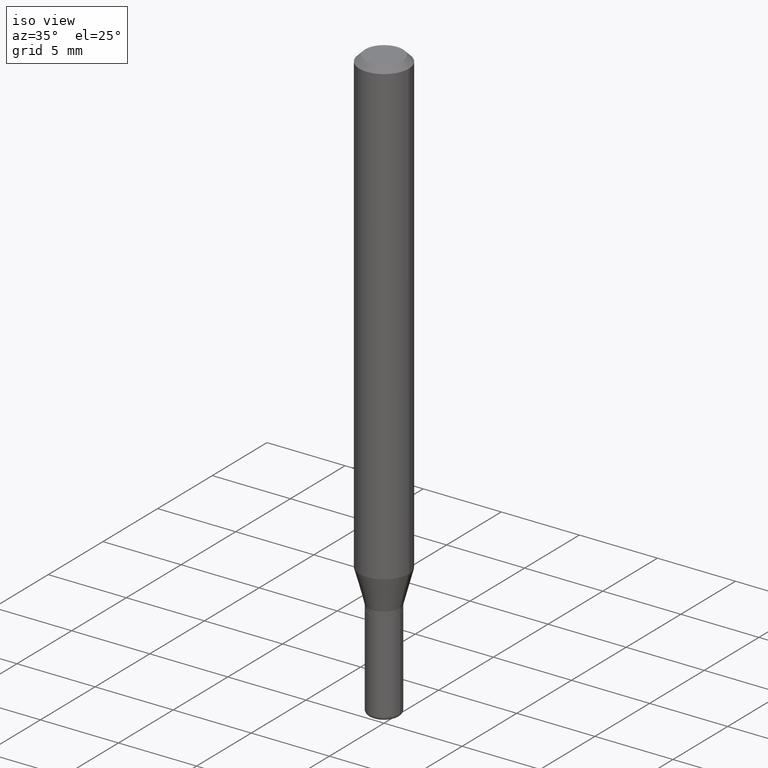
[diagram: clean part render]
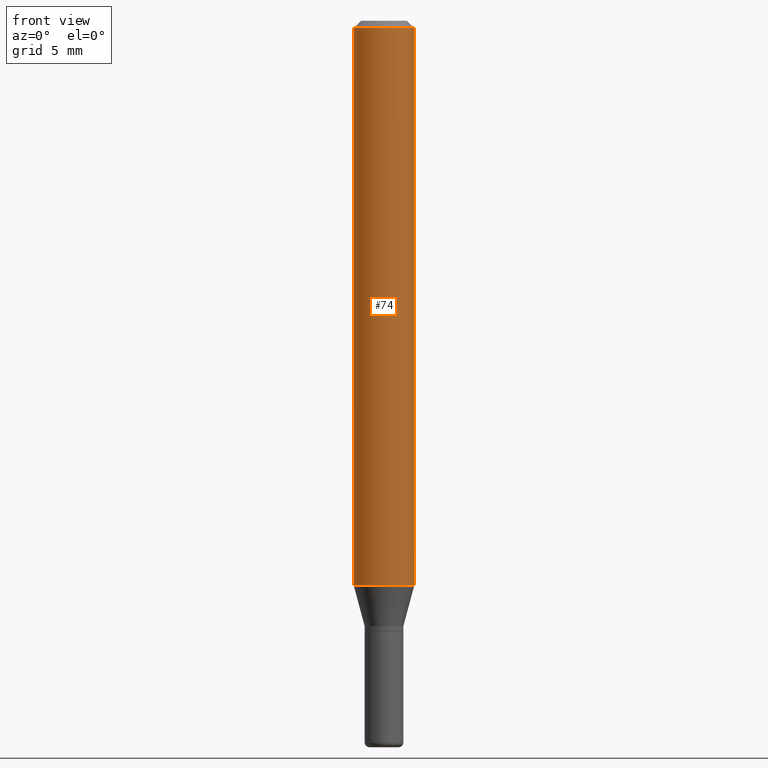
[diagram: tour spotlight — one face highlighted and labeled with its STEP entity id]
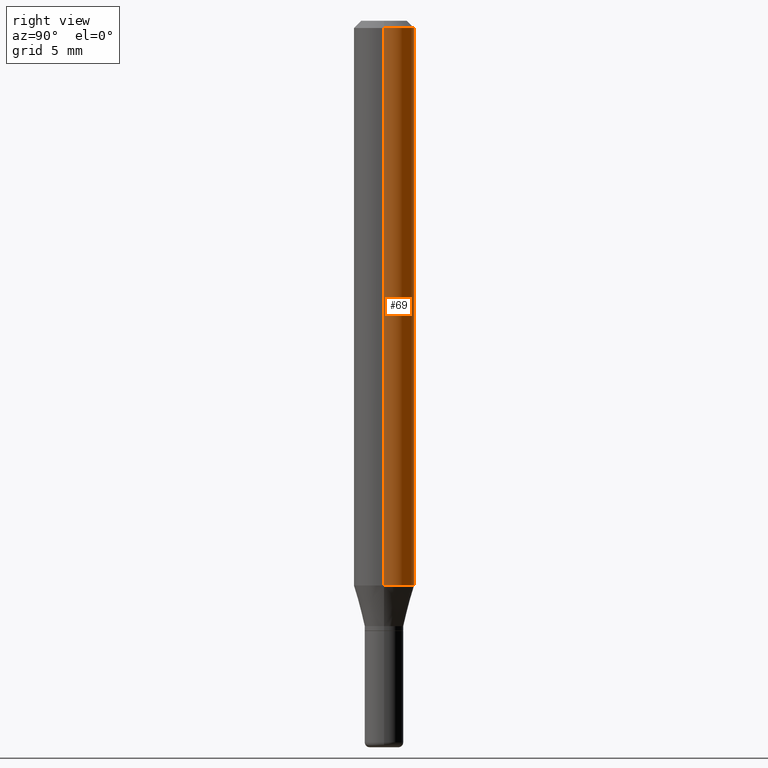
[diagram: tour spotlight — one face highlighted and labeled with its STEP entity id]
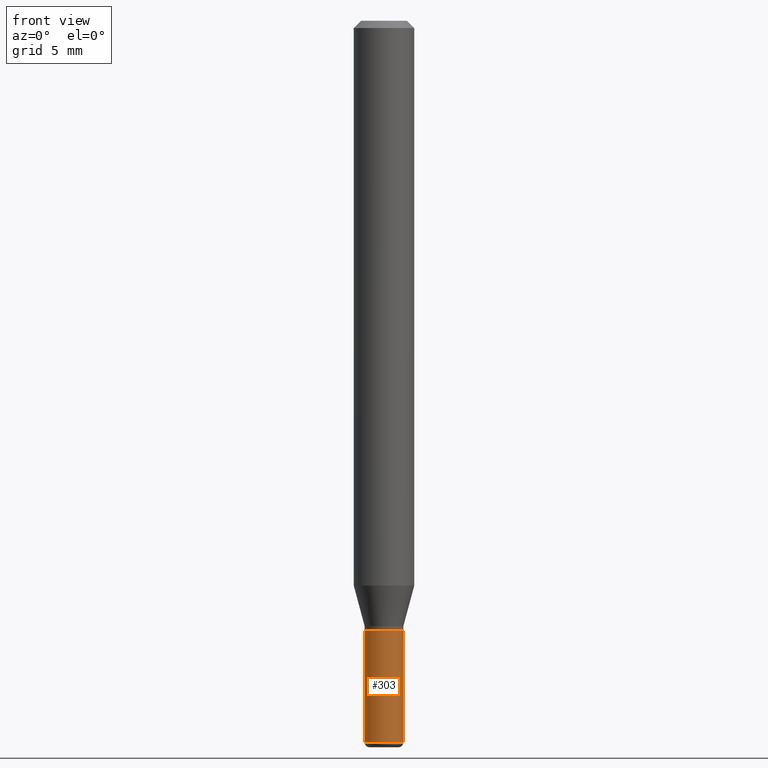
[diagram: tour spotlight — one face highlighted and labeled with its STEP entity id]
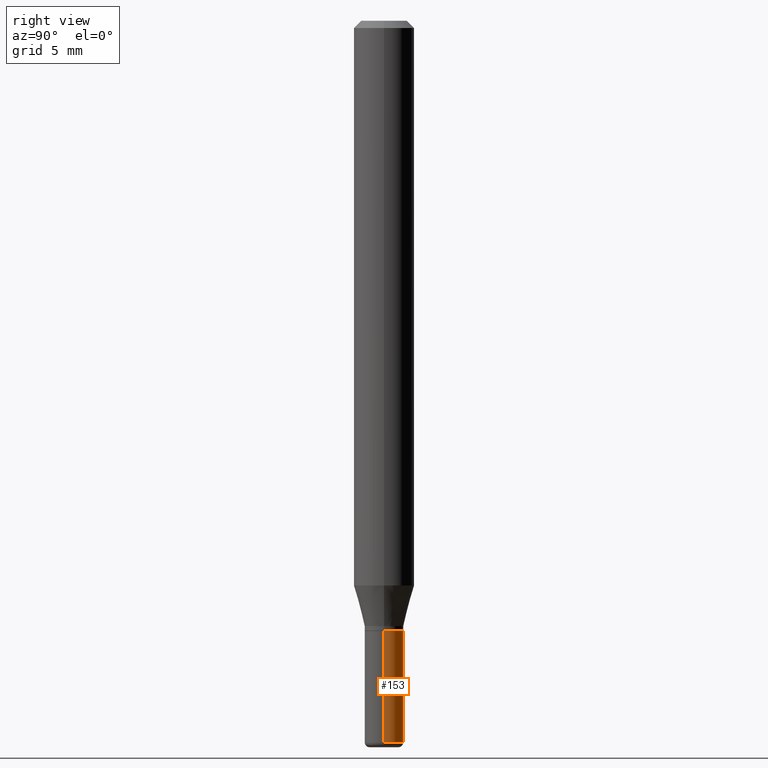
[diagram: tour spotlight — one face highlighted and labeled with its STEP entity id]
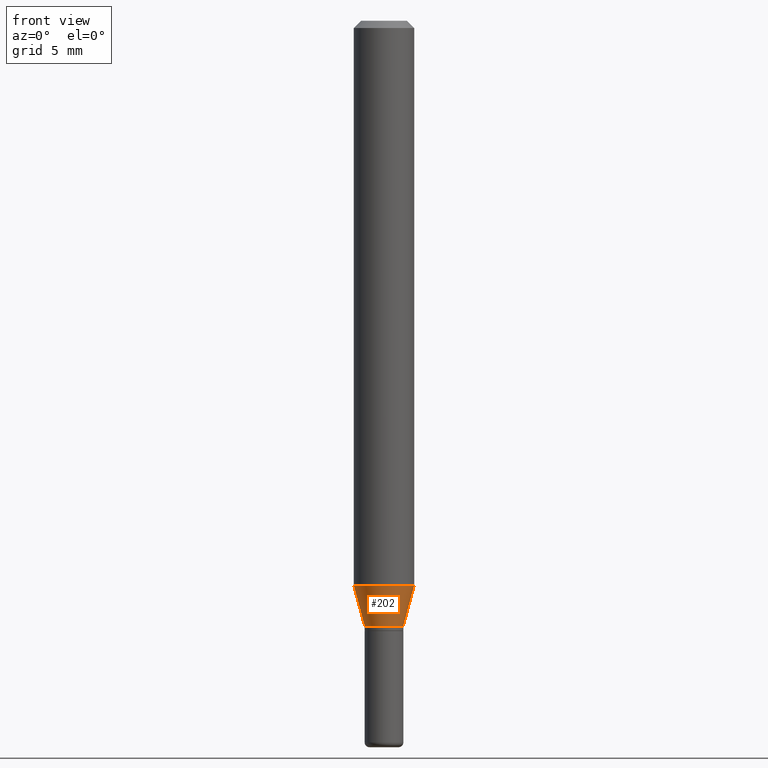
[diagram: tour spotlight — one face highlighted and labeled with its STEP entity id]
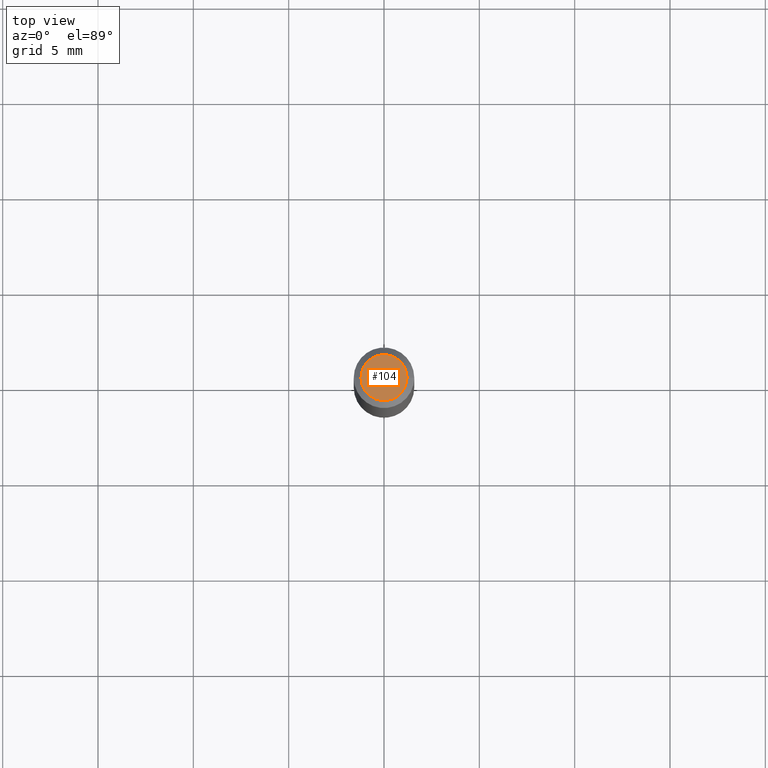
[diagram: tour spotlight — one face highlighted and labeled with its STEP entity id]
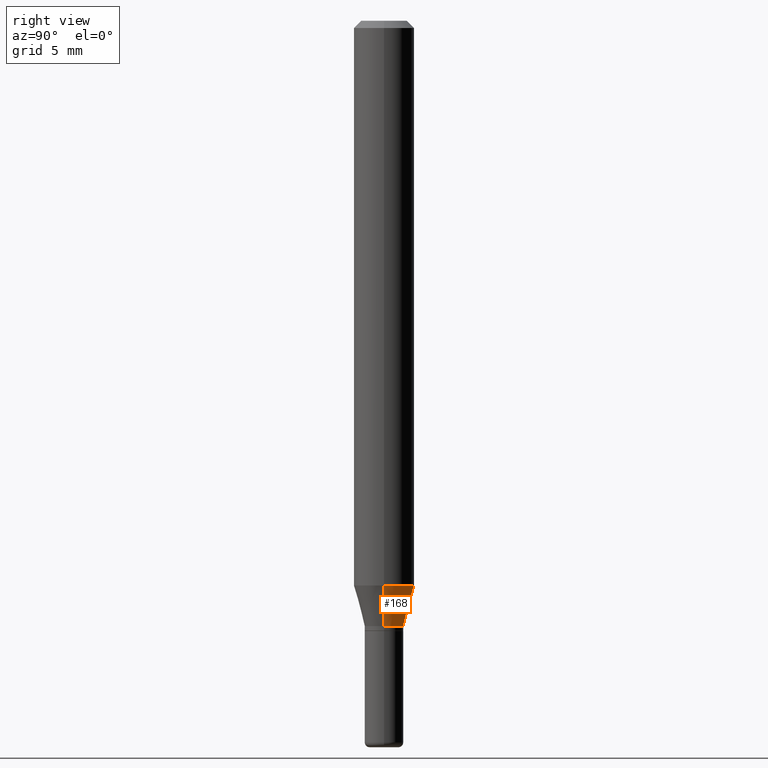
[diagram: tour spotlight — one face highlighted and labeled with its STEP entity id]
A machine part: a face-by-face anatomy tour. The part has 18 B-rep faces; the first image is the clean iso view, then the 7 largest visible faces are spotlighted one at a time (largest first), each with its STEP entity span.

Face 1 — front view, entity #74. In plain terms, the highlighted cylindrical surface (edge-blend (fillet) strip) has radius 1.5875 mm, axis along (-0, 0, 1).
Definition (entity closure, byte-faithful):
#4 = VECTOR ( 'NONE', #401, 39.37007874015748143 ) ;
#7 = EDGE_CURVE ( 'NONE', #68, #344, #48, .T. ) ;
#13 = EDGE_LOOP ( 'NONE', ( #101, #462, #169, #513 ) ) ;
#39 = CARTESIAN_POINT ( 'NONE',  ( 0.06250000000000000000, -4.507603161528896392E-15, -1.166028856829700144 ) ) ;
#48 = CIRCLE ( 'NONE', #243, 0.06250000000000000000 ) ;
#68 = VERTEX_POINT ( 'NONE', #512 ) ;
#74 = ADVANCED_FACE ( 'NONE', ( #85 ), #313, .T. ) ;
#85 = FACE_OUTER_BOUND ( 'NONE', #13, .T. ) ;
#98 = CARTESIAN_POINT ( 'NONE',  ( -0.06250000000000000000, -3.627078784323441317E-15, -1.166028856829700144 ) ) ;
#101 = ORIENTED_EDGE ( 'NONE', *, *, #415, .F. ) ;
#102 = EDGE_CURVE ( 'NONE', #382, #344, #157, .T. ) ;
#118 = CARTESIAN_POINT ( 'NONE',  ( 2.851487196488746564E-29, -4.071167994173503933E-15, -1.166028856829700144 ) ) ;
#124 = LINE ( 'NONE', #493, #4 ) ;
#145 = VERTEX_POINT ( 'NONE', #98 ) ;
#157 = LINE ( 'NONE', #478, #398 ) ;
#169 = ORIENTED_EDGE ( 'NONE', *, *, #102, .T. ) ;
#204 = CARTESIAN_POINT ( 'NONE',  ( 0.06250000000000000000, -4.888073874380378612E-16, -0.01499999999999970281 ) ) ;
#236 = CARTESIAN_POINT ( 'NONE',  ( 0.000000000000000000, 0.000000000000000000, 0.000000000000000000 ) ) ;
#243 = AXIS2_PLACEMENT_3D ( 'NONE', #484, #278, #270 ) ;
#270 = DIRECTION ( 'NONE',  ( 1.000000000000000000, -6.982962677686266711E-15, 0.000000000000000000 ) ) ;
#278 = DIRECTION ( 'NONE',  ( -2.445468806185136597E-29, 3.491481338843145583E-15, 1.000000000000000000 ) ) ;
#310 = DIRECTION ( 'NONE',  ( -2.445468806185136597E-29, 3.491481338843145583E-15, 1.000000000000000000 ) ) ;
#313 = CYLINDRICAL_SURFACE ( 'NONE', #445, 0.06250000000000000000 ) ;
#326 = CIRCLE ( 'NONE', #350, 0.06250000000000000000 ) ;
#344 = VERTEX_POINT ( 'NONE', #204 ) ;
#350 = AXIS2_PLACEMENT_3D ( 'NONE', #118, #310, #511 ) ;
#369 = EDGE_CURVE ( 'NONE', #145, #382, #326, .T. ) ;
#382 = VERTEX_POINT ( 'NONE', #39 ) ;
#391 = DIRECTION ( 'NONE',  ( -2.445468806185136597E-29, 3.491481338843145583E-15, 1.000000000000000000 ) ) ;
#394 = DIRECTION ( 'NONE',  ( -2.445468806185136877E-29, 3.491481338843145188E-15, 1.000000000000000000 ) ) ;
#398 = VECTOR ( 'NONE', #394, 39.37007874015748143 ) ;
#401 = DIRECTION ( 'NONE',  ( -2.445468806185136877E-29, 3.491481338843145188E-15, 1.000000000000000000 ) ) ;
#415 = EDGE_CURVE ( 'NONE', #145, #68, #124, .T. ) ;
#445 = AXIS2_PLACEMENT_3D ( 'NONE', #236, #391, #477 ) ;
#462 = ORIENTED_EDGE ( 'NONE', *, *, #369, .T. ) ;
#477 = DIRECTION ( 'NONE',  ( 1.000000000000000000, -6.982962677686266711E-15, 4.876176775795935793E-29 ) ) ;
#478 = CARTESIAN_POINT ( 'NONE',  ( 0.06250000000000000000, -4.364351673553916694E-16, 3.047610484872459871E-30 ) ) ;
#484 = CARTESIAN_POINT ( 'NONE',  ( 3.668203209277632395E-31, -5.237222008264614861E-17, -0.01499999999999970281 ) ) ;
#493 = CARTESIAN_POINT ( 'NONE',  ( -0.06250000000000000000, 4.440892098500626162E-16, -3.074334431409316114E-30 ) ) ;
#511 = DIRECTION ( 'NONE',  ( 1.000000000000000000, -6.982962677686262766E-15, 0.000000000000000000 ) ) ;
#512 = CARTESIAN_POINT ( 'NONE',  ( -0.06250000000000000000, -1.617680897278012101E-15, -0.01499999999999970281 ) ) ;
#513 = ORIENTED_EDGE ( 'NONE', *, *, #7, .F. ) ;

Face 2 — right view, entity #69. In plain terms, the highlighted cylindrical surface (edge-blend (fillet) strip) has radius 1.5875 mm, axis along (-0, 0, 1).
Definition (entity closure, byte-faithful):
#4 = VECTOR ( 'NONE', #401, 39.37007874015748143 ) ;
#16 = ORIENTED_EDGE ( 'NONE', *, *, #380, .T. ) ;
#25 = AXIS2_PLACEMENT_3D ( 'NONE', #194, #516, #155 ) ;
#38 = CIRCLE ( 'NONE', #267, 0.06250000000000000000 ) ;
#39 = CARTESIAN_POINT ( 'NONE',  ( 0.06250000000000000000, -4.507603161528896392E-15, -1.166028856829700144 ) ) ;
#55 = CARTESIAN_POINT ( 'NONE',  ( 3.668203209277632395E-31, -5.237222008264614861E-17, -0.01499999999999970281 ) ) ;
#68 = VERTEX_POINT ( 'NONE', #512 ) ;
#69 = ADVANCED_FACE ( 'NONE', ( #113 ), #474, .T. ) ;
#98 = CARTESIAN_POINT ( 'NONE',  ( -0.06250000000000000000, -3.627078784323441317E-15, -1.166028856829700144 ) ) ;
#102 = EDGE_CURVE ( 'NONE', #382, #344, #157, .T. ) ;
#113 = FACE_OUTER_BOUND ( 'NONE', #230, .T. ) ;
#124 = LINE ( 'NONE', #493, #4 ) ;
#139 = AXIS2_PLACEMENT_3D ( 'NONE', #55, #211, #294 ) ;
#142 = ORIENTED_EDGE ( 'NONE', *, *, #102, .F. ) ;
#145 = VERTEX_POINT ( 'NONE', #98 ) ;
#148 = ORIENTED_EDGE ( 'NONE', *, *, #514, .F. ) ;
#155 = DIRECTION ( 'NONE',  ( 1.000000000000000000, -6.982962677686266711E-15, 4.876176775795935793E-29 ) ) ;
#157 = LINE ( 'NONE', #478, #398 ) ;
#194 = CARTESIAN_POINT ( 'NONE',  ( 0.000000000000000000, 0.000000000000000000, 0.000000000000000000 ) ) ;
#204 = CARTESIAN_POINT ( 'NONE',  ( 0.06250000000000000000, -4.888073874380378612E-16, -0.01499999999999970281 ) ) ;
#211 = DIRECTION ( 'NONE',  ( -2.445468806185136597E-29, 3.491481338843145583E-15, 1.000000000000000000 ) ) ;
#230 = EDGE_LOOP ( 'NONE', ( #16, #372, #148, #142 ) ) ;
#257 = CIRCLE ( 'NONE', #139, 0.06250000000000000000 ) ;
#267 = AXIS2_PLACEMENT_3D ( 'NONE', #386, #347, #390 ) ;
#294 = DIRECTION ( 'NONE',  ( 1.000000000000000000, -6.982962677686266711E-15, 0.000000000000000000 ) ) ;
#344 = VERTEX_POINT ( 'NONE', #204 ) ;
#347 = DIRECTION ( 'NONE',  ( -2.445468806185136597E-29, 3.491481338843145583E-15, 1.000000000000000000 ) ) ;
#372 = ORIENTED_EDGE ( 'NONE', *, *, #415, .T. ) ;
#380 = EDGE_CURVE ( 'NONE', #382, #145, #38, .T. ) ;
#382 = VERTEX_POINT ( 'NONE', #39 ) ;
#386 = CARTESIAN_POINT ( 'NONE',  ( 2.851487196488746564E-29, -4.071167994173503933E-15, -1.166028856829700144 ) ) ;
#390 = DIRECTION ( 'NONE',  ( 1.000000000000000000, -6.982962677686262766E-15, 0.000000000000000000 ) ) ;
#394 = DIRECTION ( 'NONE',  ( -2.445468806185136877E-29, 3.491481338843145188E-15, 1.000000000000000000 ) ) ;
#398 = VECTOR ( 'NONE', #394, 39.37007874015748143 ) ;
#401 = DIRECTION ( 'NONE',  ( -2.445468806185136877E-29, 3.491481338843145188E-15, 1.000000000000000000 ) ) ;
#415 = EDGE_CURVE ( 'NONE', #145, #68, #124, .T. ) ;
#474 = CYLINDRICAL_SURFACE ( 'NONE', #25, 0.06250000000000000000 ) ;
#478 = CARTESIAN_POINT ( 'NONE',  ( 0.06250000000000000000, -4.364351673553916694E-16, 3.047610484872459871E-30 ) ) ;
#493 = CARTESIAN_POINT ( 'NONE',  ( -0.06250000000000000000, 4.440892098500626162E-16, -3.074334431409316114E-30 ) ) ;
#512 = CARTESIAN_POINT ( 'NONE',  ( -0.06250000000000000000, -1.617680897278012101E-15, -0.01499999999999970281 ) ) ;
#514 = EDGE_CURVE ( 'NONE', #344, #68, #257, .T. ) ;
#516 = DIRECTION ( 'NONE',  ( -2.445468806185136597E-29, 3.491481338843145583E-15, 1.000000000000000000 ) ) ;

Face 3 — front view, entity #303. In plain terms, the highlighted cylindrical surface (edge-blend (fillet) strip) has radius 1.016 mm, axis along (-0, 0, 1).
Definition (entity closure, byte-faithful):
#1 = FACE_OUTER_BOUND ( 'NONE', #333, .T. ) ;
#30 = EDGE_CURVE ( 'NONE', #218, #227, #322, .T. ) ;
#72 = CARTESIAN_POINT ( 'NONE',  ( -0.04000000000000000083, -4.516569746605286181E-15, -1.260000000000000231 ) ) ;
#81 = CARTESIAN_POINT ( 'NONE',  ( -0.03999999999999997308, 2.842170943040398830E-16, -1.967574036101961108E-30 ) ) ;
#84 = DIRECTION ( 'NONE',  ( -2.445468806185136877E-29, 3.491481338843145188E-15, 1.000000000000000000 ) ) ;
#88 = DIRECTION ( 'NONE',  ( 1.000000000000000000, -6.982962677686268288E-15, 0.000000000000000000 ) ) ;
#99 = VERTEX_POINT ( 'NONE', #443 ) ;
#109 = AXIS2_PLACEMENT_3D ( 'NONE', #159, #196, #88 ) ;
#112 = LINE ( 'NONE', #81, #501 ) ;
#114 = CARTESIAN_POINT ( 'NONE',  ( 0.000000000000000000, 0.000000000000000000, 0.000000000000000000 ) ) ;
#136 = CIRCLE ( 'NONE', #208, 0.04000000000000000083 ) ;
#143 = AXIS2_PLACEMENT_3D ( 'NONE', #114, #307, #226 ) ;
#154 = LINE ( 'NONE', #517, #433 ) ;
#159 = CARTESIAN_POINT ( 'NONE',  ( 3.643748521215853910E-29, -5.202307194876288105E-15, -1.490000000000000213 ) ) ;
#186 = VERTEX_POINT ( 'NONE', #72 ) ;
#196 = DIRECTION ( 'NONE',  ( -2.445468806185136597E-29, 3.491481338843145583E-15, 1.000000000000000000 ) ) ;
#208 = AXIS2_PLACEMENT_3D ( 'NONE', #319, #345, #483 ) ;
#218 = VERTEX_POINT ( 'NONE', #420 ) ;
#226 = DIRECTION ( 'NONE',  ( 1.000000000000000000, -6.982962677686266711E-15, 4.876176775795935793E-29 ) ) ;
#227 = VERTEX_POINT ( 'NONE', #473 ) ;
#253 = EDGE_CURVE ( 'NONE', #186, #99, #136, .T. ) ;
#260 = EDGE_CURVE ( 'NONE', #218, #186, #112, .T. ) ;
#281 = DIRECTION ( 'NONE',  ( -2.445468806185136877E-29, 3.491481338843145188E-15, 1.000000000000000000 ) ) ;
#303 = ADVANCED_FACE ( 'NONE', ( #1 ), #429, .T. ) ;
#307 = DIRECTION ( 'NONE',  ( -2.445468806185136597E-29, 3.491481338843145583E-15, 1.000000000000000000 ) ) ;
#319 = CARTESIAN_POINT ( 'NONE',  ( 3.081290695793272291E-29, -4.399266486942364120E-15, -1.260000000000000231 ) ) ;
#322 = CIRCLE ( 'NONE', #109, 0.03999999999999995226 ) ;
#327 = EDGE_CURVE ( 'NONE', #227, #99, #154, .T. ) ;
#328 = ORIENTED_EDGE ( 'NONE', *, *, #30, .T. ) ;
#333 = EDGE_LOOP ( 'NONE', ( #374, #328, #422, #339 ) ) ;
#339 = ORIENTED_EDGE ( 'NONE', *, *, #253, .F. ) ;
#345 = DIRECTION ( 'NONE',  ( -2.445468806185136597E-29, 3.491481338843145583E-15, 1.000000000000000000 ) ) ;
#374 = ORIENTED_EDGE ( 'NONE', *, *, #260, .F. ) ;
#420 = CARTESIAN_POINT ( 'NONE',  ( -0.03999999999999995226, -4.516569746605286181E-15, -1.490000000000000213 ) ) ;
#422 = ORIENTED_EDGE ( 'NONE', *, *, #327, .T. ) ;
#429 = CYLINDRICAL_SURFACE ( 'NONE', #143, 0.03999999999999997308 ) ;
#433 = VECTOR ( 'NONE', #84, 39.37007874015748143 ) ;
#443 = CARTESIAN_POINT ( 'NONE',  ( 0.04000000000000000083, -4.678584994049814947E-15, -1.260000000000000231 ) ) ;
#473 = CARTESIAN_POINT ( 'NONE',  ( 0.03999999999999995226, -5.481625701983738143E-15, -1.490000000000000213 ) ) ;
#483 = DIRECTION ( 'NONE',  ( 1.000000000000000000, -6.982962677686259611E-15, 0.000000000000000000 ) ) ;
#501 = VECTOR ( 'NONE', #281, 39.37007874015748143 ) ;
#517 = CARTESIAN_POINT ( 'NONE',  ( 0.03999999999999997308, -2.793185071074504811E-16, 1.950470710318372986E-30 ) ) ;

Face 4 — right view, entity #153. In plain terms, the highlighted cylindrical surface (edge-blend (fillet) strip) has radius 1.016 mm, axis along (-0, 0, 1).
Definition (entity closure, byte-faithful):
#2 = CIRCLE ( 'NONE', #488, 0.03999999999999995226 ) ;
#37 = ORIENTED_EDGE ( 'NONE', *, *, #327, .F. ) ;
#44 = CIRCLE ( 'NONE', #508, 0.04000000000000000083 ) ;
#72 = CARTESIAN_POINT ( 'NONE',  ( -0.04000000000000000083, -4.516569746605286181E-15, -1.260000000000000231 ) ) ;
#81 = CARTESIAN_POINT ( 'NONE',  ( -0.03999999999999997308, 2.842170943040398830E-16, -1.967574036101961108E-30 ) ) ;
#84 = DIRECTION ( 'NONE',  ( -2.445468806185136877E-29, 3.491481338843145188E-15, 1.000000000000000000 ) ) ;
#87 = DIRECTION ( 'NONE',  ( -2.445468806185136597E-29, 3.491481338843145583E-15, 1.000000000000000000 ) ) ;
#99 = VERTEX_POINT ( 'NONE', #443 ) ;
#112 = LINE ( 'NONE', #81, #501 ) ;
#153 = ADVANCED_FACE ( 'NONE', ( #247 ), #289, .T. ) ;
#154 = LINE ( 'NONE', #517, #433 ) ;
#160 = DIRECTION ( 'NONE',  ( 1.000000000000000000, -6.982962677686259611E-15, 0.000000000000000000 ) ) ;
#163 = EDGE_CURVE ( 'NONE', #227, #218, #2, .T. ) ;
#186 = VERTEX_POINT ( 'NONE', #72 ) ;
#212 = DIRECTION ( 'NONE',  ( -2.445468806185136597E-29, 3.491481338843145583E-15, 1.000000000000000000 ) ) ;
#218 = VERTEX_POINT ( 'NONE', #420 ) ;
#225 = ORIENTED_EDGE ( 'NONE', *, *, #340, .F. ) ;
#227 = VERTEX_POINT ( 'NONE', #473 ) ;
#247 = FACE_OUTER_BOUND ( 'NONE', #375, .T. ) ;
#260 = EDGE_CURVE ( 'NONE', #218, #186, #112, .T. ) ;
#263 = DIRECTION ( 'NONE',  ( 1.000000000000000000, -6.982962677686268288E-15, 0.000000000000000000 ) ) ;
#281 = DIRECTION ( 'NONE',  ( -2.445468806185136877E-29, 3.491481338843145188E-15, 1.000000000000000000 ) ) ;
#285 = AXIS2_PLACEMENT_3D ( 'NONE', #408, #212, #440 ) ;
#289 = CYLINDRICAL_SURFACE ( 'NONE', #285, 0.03999999999999997308 ) ;
#327 = EDGE_CURVE ( 'NONE', #227, #99, #154, .T. ) ;
#334 = DIRECTION ( 'NONE',  ( -2.445468806185136597E-29, 3.491481338843145583E-15, 1.000000000000000000 ) ) ;
#340 = EDGE_CURVE ( 'NONE', #99, #186, #44, .T. ) ;
#364 = CARTESIAN_POINT ( 'NONE',  ( 3.643748521215853910E-29, -5.202307194876288105E-15, -1.490000000000000213 ) ) ;
#366 = ORIENTED_EDGE ( 'NONE', *, *, #260, .T. ) ;
#375 = EDGE_LOOP ( 'NONE', ( #405, #366, #225, #37 ) ) ;
#405 = ORIENTED_EDGE ( 'NONE', *, *, #163, .T. ) ;
#408 = CARTESIAN_POINT ( 'NONE',  ( 0.000000000000000000, 0.000000000000000000, 0.000000000000000000 ) ) ;
#420 = CARTESIAN_POINT ( 'NONE',  ( -0.03999999999999995226, -4.516569746605286181E-15, -1.490000000000000213 ) ) ;
#425 = CARTESIAN_POINT ( 'NONE',  ( 3.081290695793272291E-29, -4.399266486942364120E-15, -1.260000000000000231 ) ) ;
#433 = VECTOR ( 'NONE', #84, 39.37007874015748143 ) ;
#440 = DIRECTION ( 'NONE',  ( 1.000000000000000000, -6.982962677686266711E-15, 4.876176775795935793E-29 ) ) ;
#443 = CARTESIAN_POINT ( 'NONE',  ( 0.04000000000000000083, -4.678584994049814947E-15, -1.260000000000000231 ) ) ;
#473 = CARTESIAN_POINT ( 'NONE',  ( 0.03999999999999995226, -5.481625701983738143E-15, -1.490000000000000213 ) ) ;
#488 = AXIS2_PLACEMENT_3D ( 'NONE', #364, #334, #263 ) ;
#501 = VECTOR ( 'NONE', #281, 39.37007874015748143 ) ;
#508 = AXIS2_PLACEMENT_3D ( 'NONE', #425, #87, #160 ) ;
#517 = CARTESIAN_POINT ( 'NONE',  ( 0.03999999999999997308, -2.793185071074504811E-16, 1.950470710318372986E-30 ) ) ;

Face 5 — front view, entity #202. In plain terms, the highlighted conical surface has half-angle 15 deg.
Definition (entity closure, byte-faithful):
#21 = DIRECTION ( 'NONE',  ( -0.2588190451025205174, 5.211531920934544731E-15, 0.9659258262890684232 ) ) ;
#39 = CARTESIAN_POINT ( 'NONE',  ( 0.06250000000000000000, -4.507603161528896392E-15, -1.166028856829700144 ) ) ;
#52 = EDGE_CURVE ( 'NONE', #432, #361, #250, .T. ) ;
#62 = VECTOR ( 'NONE', #468, 39.37007874015748143 ) ;
#98 = CARTESIAN_POINT ( 'NONE',  ( -0.06250000000000000000, -3.627078784323441317E-15, -1.166028856829700144 ) ) ;
#110 = ORIENTED_EDGE ( 'NONE', *, *, #52, .T. ) ;
#111 = DIRECTION ( 'NONE',  ( -2.445468806185136597E-29, 3.491481338843145583E-15, 1.000000000000000000 ) ) ;
#116 = LINE ( 'NONE', #515, #62 ) ;
#118 = CARTESIAN_POINT ( 'NONE',  ( 2.851487196488746564E-29, -4.071167994173503933E-15, -1.166028856829700144 ) ) ;
#121 = EDGE_CURVE ( 'NONE', #432, #145, #209, .T. ) ;
#145 = VERTEX_POINT ( 'NONE', #98 ) ;
#167 = VECTOR ( 'NONE', #21, 39.37007874015748143 ) ;
#190 = AXIS2_PLACEMENT_3D ( 'NONE', #233, #242, #397 ) ;
#202 = ADVANCED_FACE ( 'NONE', ( #258 ), #427, .T. ) ;
#209 = LINE ( 'NONE', #499, #167 ) ;
#233 = CARTESIAN_POINT ( 'NONE',  ( 3.056836007731421306E-29, -4.364351673553932471E-15, -1.250000000000000000 ) ) ;
#240 = CARTESIAN_POINT ( 'NONE',  ( 0.03999999999999995920, -4.643670180661383298E-15, -1.250000000000000000 ) ) ;
#242 = DIRECTION ( 'NONE',  ( -2.445468806185136597E-29, 3.491481338843145583E-15, 1.000000000000000000 ) ) ;
#250 = CIRCLE ( 'NONE', #190, 0.03999999999999995920 ) ;
#258 = FACE_OUTER_BOUND ( 'NONE', #481, .T. ) ;
#264 = AXIS2_PLACEMENT_3D ( 'NONE', #465, #111, #269 ) ;
#269 = DIRECTION ( 'NONE',  ( 1.000000000000000000, -6.982962677686279332E-15, 0.000000000000000000 ) ) ;
#290 = CARTESIAN_POINT ( 'NONE',  ( -0.03999999999999995920, -3.853606681786666336E-15, -1.250000000000000000 ) ) ;
#304 = EDGE_CURVE ( 'NONE', #361, #382, #116, .T. ) ;
#310 = DIRECTION ( 'NONE',  ( -2.445468806185136597E-29, 3.491481338843145583E-15, 1.000000000000000000 ) ) ;
#326 = CIRCLE ( 'NONE', #350, 0.06250000000000000000 ) ;
#343 = ORIENTED_EDGE ( 'NONE', *, *, #369, .F. ) ;
#350 = AXIS2_PLACEMENT_3D ( 'NONE', #118, #310, #511 ) ;
#361 = VERTEX_POINT ( 'NONE', #240 ) ;
#369 = EDGE_CURVE ( 'NONE', #145, #382, #326, .T. ) ;
#382 = VERTEX_POINT ( 'NONE', #39 ) ;
#397 = DIRECTION ( 'NONE',  ( 1.000000000000000000, -6.982962677686279332E-15, 0.000000000000000000 ) ) ;
#414 = ORIENTED_EDGE ( 'NONE', *, *, #304, .T. ) ;
#427 = CONICAL_SURFACE ( 'NONE', #264, 0.03999999999999995920, 0.2617993877991491858 ) ;
#432 = VERTEX_POINT ( 'NONE', #290 ) ;
#465 = CARTESIAN_POINT ( 'NONE',  ( 3.056836007731421306E-29, -4.364351673553932471E-15, -1.250000000000000000 ) ) ;
#468 = DIRECTION ( 'NONE',  ( 0.2588190451025205174, 1.565188264969628476E-15, 0.9659258262890684232 ) ) ;
#481 = EDGE_LOOP ( 'NONE', ( #504, #110, #414, #343 ) ) ;
#499 = CARTESIAN_POINT ( 'NONE',  ( -0.03999999999999995920, -4.080134579249892145E-15, -1.250000000000000000 ) ) ;
#504 = ORIENTED_EDGE ( 'NONE', *, *, #121, .F. ) ;
#511 = DIRECTION ( 'NONE',  ( 1.000000000000000000, -6.982962677686262766E-15, 0.000000000000000000 ) ) ;
#515 = CARTESIAN_POINT ( 'NONE',  ( 0.03999999999999995920, -4.643670180661383298E-15, -1.250000000000000000 ) ) ;

Face 6 — top view, entity #104. In plain terms, the highlighted planar face has unit normal (0, -0, -1).
Definition (entity closure, byte-faithful):
#31 = ORIENTED_EDGE ( 'NONE', *, *, #470, .T. ) ;
#40 = CARTESIAN_POINT ( 'NONE',  ( -6.680649051745406845E-45, 9.538196290434862081E-31, 2.731847993664263218E-16 ) ) ;
#42 = PLANE ( 'NONE',  #370 ) ;
#59 = DIRECTION ( 'NONE',  ( 2.438088387897960049E-29, -3.491481338843145188E-15, -1.000000000000000000 ) ) ;
#92 = EDGE_CURVE ( 'NONE', #413, #317, #332, .T. ) ;
#104 = ADVANCED_FACE ( 'NONE', ( #423 ), #42, .F. ) ;
#106 = EDGE_LOOP ( 'NONE', ( #31, #492 ) ) ;
#117 = DIRECTION ( 'NONE',  ( -2.445468806185136597E-29, 3.491481338843145583E-15, 1.000000000000000000 ) ) ;
#126 = DIRECTION ( 'NONE',  ( 1.000000000000000000, -6.982962677686266711E-15, 4.852736867747365086E-29 ) ) ;
#197 = CARTESIAN_POINT ( 'NONE',  ( 3.316907271900976589E-16, 0.04750000000000000749, -2.925296391183627249E-17 ) ) ;
#206 = DIRECTION ( 'NONE',  ( -2.445468806185136597E-29, 3.491481338843145583E-15, 1.000000000000000000 ) ) ;
#254 = CARTESIAN_POINT ( 'NONE',  ( 0.04750000000000000749, -4.035134999187568762E-16, 2.731847993664288856E-16 ) ) ;
#271 = CARTESIAN_POINT ( 'NONE',  ( -0.04750000000000000749, 3.578768372314221353E-16, 2.731847993664239060E-16 ) ) ;
#317 = VERTEX_POINT ( 'NONE', #271 ) ;
#332 = CIRCLE ( 'NONE', #437, 0.04750000000000000749 ) ;
#358 = DIRECTION ( 'NONE',  ( 1.000000000000000000, -6.982962677686266711E-15, 4.852736867747365086E-29 ) ) ;
#365 = DIRECTION ( 'NONE',  ( -1.000000000000000000, 6.982962677686265922E-15, -4.876176775795935793E-29 ) ) ;
#370 = AXIS2_PLACEMENT_3D ( 'NONE', #197, #59, #365 ) ;
#412 = CIRCLE ( 'NONE', #449, 0.04750000000000000749 ) ;
#413 = VERTEX_POINT ( 'NONE', #254 ) ;
#423 = FACE_OUTER_BOUND ( 'NONE', #106, .T. ) ;
#434 = CARTESIAN_POINT ( 'NONE',  ( -6.680649051745406845E-45, 9.538196290434862081E-31, 2.731847993664263218E-16 ) ) ;
#437 = AXIS2_PLACEMENT_3D ( 'NONE', #40, #117, #126 ) ;
#449 = AXIS2_PLACEMENT_3D ( 'NONE', #434, #206, #358 ) ;
#470 = EDGE_CURVE ( 'NONE', #317, #413, #412, .T. ) ;
#492 = ORIENTED_EDGE ( 'NONE', *, *, #92, .T. ) ;

Face 7 — right view, entity #168. In plain terms, the highlighted conical surface has half-angle 15 deg.
Definition (entity closure, byte-faithful):
#10 = CIRCLE ( 'NONE', #234, 0.03999999999999995920 ) ;
#21 = DIRECTION ( 'NONE',  ( -0.2588190451025205174, 5.211531920934544731E-15, 0.9659258262890684232 ) ) ;
#38 = CIRCLE ( 'NONE', #267, 0.06250000000000000000 ) ;
#39 = CARTESIAN_POINT ( 'NONE',  ( 0.06250000000000000000, -4.507603161528896392E-15, -1.166028856829700144 ) ) ;
#49 = CARTESIAN_POINT ( 'NONE',  ( 3.056836007731421306E-29, -4.364351673553932471E-15, -1.250000000000000000 ) ) ;
#61 = EDGE_CURVE ( 'NONE', #361, #432, #10, .T. ) ;
#62 = VECTOR ( 'NONE', #468, 39.37007874015748143 ) ;
#71 = AXIS2_PLACEMENT_3D ( 'NONE', #498, #505, #461 ) ;
#78 = DIRECTION ( 'NONE',  ( -2.445468806185136597E-29, 3.491481338843145583E-15, 1.000000000000000000 ) ) ;
#98 = CARTESIAN_POINT ( 'NONE',  ( -0.06250000000000000000, -3.627078784323441317E-15, -1.166028856829700144 ) ) ;
#116 = LINE ( 'NONE', #515, #62 ) ;
#121 = EDGE_CURVE ( 'NONE', #432, #145, #209, .T. ) ;
#128 = ORIENTED_EDGE ( 'NONE', *, *, #304, .F. ) ;
#145 = VERTEX_POINT ( 'NONE', #98 ) ;
#167 = VECTOR ( 'NONE', #21, 39.37007874015748143 ) ;
#168 = ADVANCED_FACE ( 'NONE', ( #329 ), #292, .T. ) ;
#209 = LINE ( 'NONE', #499, #167 ) ;
#234 = AXIS2_PLACEMENT_3D ( 'NONE', #49, #78, #421 ) ;
#240 = CARTESIAN_POINT ( 'NONE',  ( 0.03999999999999995920, -4.643670180661383298E-15, -1.250000000000000000 ) ) ;
#256 = ORIENTED_EDGE ( 'NONE', *, *, #121, .T. ) ;
#267 = AXIS2_PLACEMENT_3D ( 'NONE', #386, #347, #390 ) ;
#290 = CARTESIAN_POINT ( 'NONE',  ( -0.03999999999999995920, -3.853606681786666336E-15, -1.250000000000000000 ) ) ;
#292 = CONICAL_SURFACE ( 'NONE', #71, 0.03999999999999995920, 0.2617993877991491858 ) ;
#304 = EDGE_CURVE ( 'NONE', #361, #382, #116, .T. ) ;
#329 = FACE_OUTER_BOUND ( 'NONE', #454, .T. ) ;
#331 = ORIENTED_EDGE ( 'NONE', *, *, #380, .F. ) ;
#336 = ORIENTED_EDGE ( 'NONE', *, *, #61, .T. ) ;
#347 = DIRECTION ( 'NONE',  ( -2.445468806185136597E-29, 3.491481338843145583E-15, 1.000000000000000000 ) ) ;
#361 = VERTEX_POINT ( 'NONE', #240 ) ;
#380 = EDGE_CURVE ( 'NONE', #382, #145, #38, .T. ) ;
#382 = VERTEX_POINT ( 'NONE', #39 ) ;
#386 = CARTESIAN_POINT ( 'NONE',  ( 2.851487196488746564E-29, -4.071167994173503933E-15, -1.166028856829700144 ) ) ;
#390 = DIRECTION ( 'NONE',  ( 1.000000000000000000, -6.982962677686262766E-15, 0.000000000000000000 ) ) ;
#421 = DIRECTION ( 'NONE',  ( 1.000000000000000000, -6.982962677686279332E-15, 0.000000000000000000 ) ) ;
#432 = VERTEX_POINT ( 'NONE', #290 ) ;
#454 = EDGE_LOOP ( 'NONE', ( #336, #256, #331, #128 ) ) ;
#461 = DIRECTION ( 'NONE',  ( 1.000000000000000000, -6.982962677686279332E-15, 0.000000000000000000 ) ) ;
#468 = DIRECTION ( 'NONE',  ( 0.2588190451025205174, 1.565188264969628476E-15, 0.9659258262890684232 ) ) ;
#498 = CARTESIAN_POINT ( 'NONE',  ( 3.056836007731421306E-29, -4.364351673553932471E-15, -1.250000000000000000 ) ) ;
#499 = CARTESIAN_POINT ( 'NONE',  ( -0.03999999999999995920, -4.080134579249892145E-15, -1.250000000000000000 ) ) ;
#505 = DIRECTION ( 'NONE',  ( -2.445468806185136597E-29, 3.491481338843145583E-15, 1.000000000000000000 ) ) ;
#515 = CARTESIAN_POINT ( 'NONE',  ( 0.03999999999999995920, -4.643670180661383298E-15, -1.250000000000000000 ) ) ;